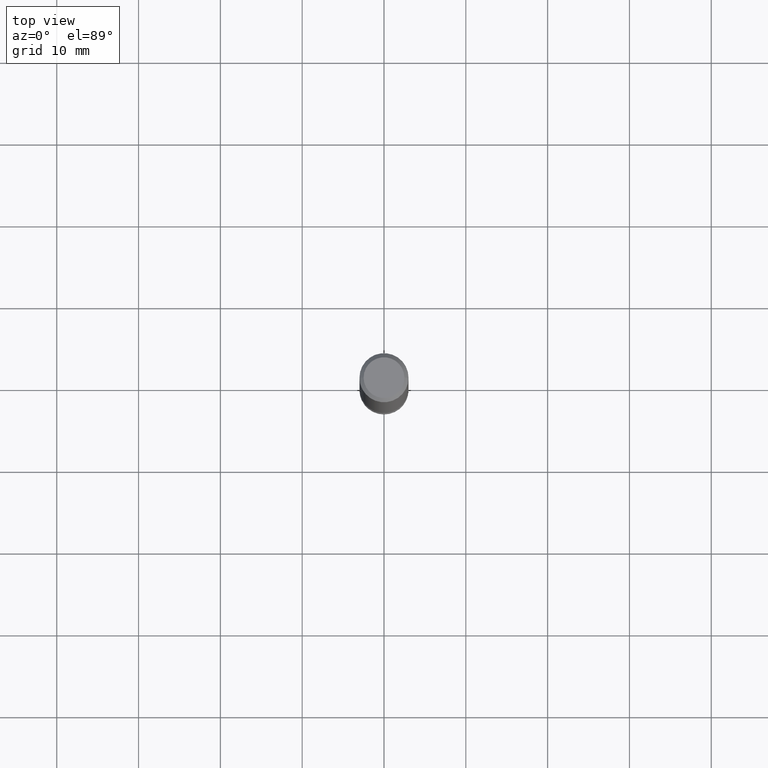
[diagram: clean part render]
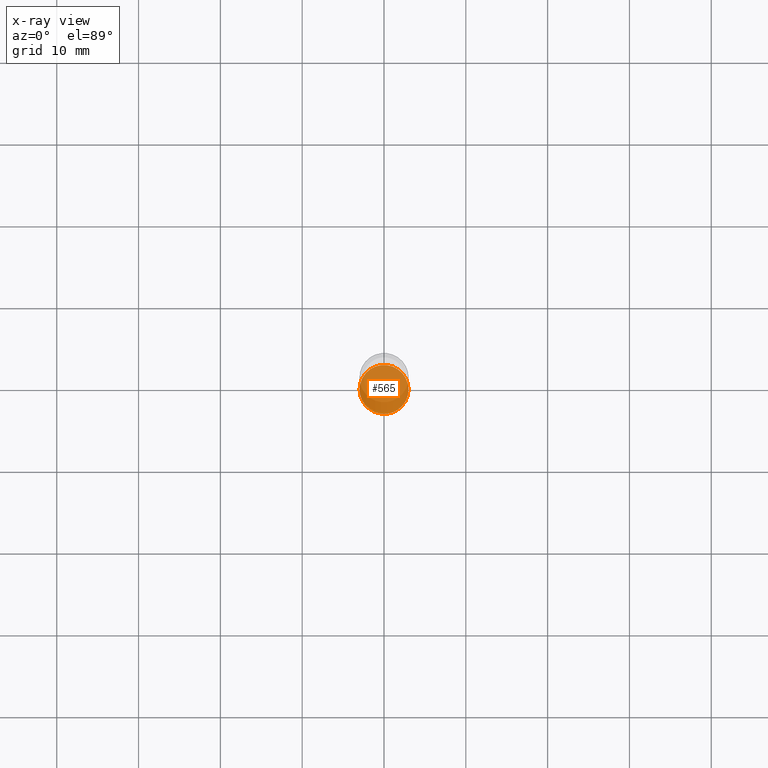
[diagram: x-ray — body ghosted, one internal face saturated and labeled with its STEP entity id]
A machine part, top view, then the same camera in x-ray: the body is ghosted and one INTERNAL B-rep face — a face not visible from any outside direction — is saturated and labeled: STEP entity #565.
In plain terms, the highlighted planar face has unit normal (0, -0, -1).
Its self-contained STEP definition (entity closure, byte-faithful):
#9 = DIRECTION ( 'NONE',  ( -1.000000000000000000, 6.982962677686265922E-15, -4.876176775795935793E-29 ) ) ;
#30 = VERTEX_POINT ( 'NONE', #146 ) ;
#35 = CIRCLE ( 'NONE', #535, 0.1175999999999994133 ) ;
#48 = VERTEX_POINT ( 'NONE', #550 ) ;
#63 = EDGE_CURVE ( 'NONE', #30, #48, #488, .T. ) ;
#69 = PLANE ( 'NONE',  #555 ) ;
#76 = DIRECTION ( 'NONE',  ( -1.000000000000000000, 6.982962677686261977E-15, 0.000000000000000000 ) ) ;
#77 = DIRECTION ( 'NONE',  ( 2.438088387897960049E-29, -3.491481338843145188E-15, -1.000000000000000000 ) ) ;
#96 = EDGE_CURVE ( 'NONE', #48, #30, #35, .T. ) ;
#123 = DIRECTION ( 'NONE',  ( 2.445468806185136597E-29, -3.491481338843145583E-15, -1.000000000000000000 ) ) ;
#144 = ORIENTED_EDGE ( 'NONE', *, *, #63, .T. ) ;
#146 = CARTESIAN_POINT ( 'NONE',  ( -0.1175999999999994133, -1.057165829653353752E-14, -3.267699999999999605 ) ) ;
#176 = ORIENTED_EDGE ( 'NONE', *, *, #96, .T. ) ;
#182 = EDGE_LOOP ( 'NONE', ( #176, #144 ) ) ;
#303 = DIRECTION ( 'NONE',  ( 2.445468806185136597E-29, -3.491481338843145583E-15, -1.000000000000000000 ) ) ;
#342 = DIRECTION ( 'NONE',  ( -1.000000000000000000, 6.982962677686261977E-15, 0.000000000000000000 ) ) ;
#391 = CARTESIAN_POINT ( 'NONE',  ( 8.211964108959807889E-16, 0.1175999999999880058, -3.267700000000000049 ) ) ;
#392 = CARTESIAN_POINT ( 'NONE',  ( 7.991058417971169471E-29, -1.140911357093774486E-14, -3.267699999999999605 ) ) ;
#488 = CIRCLE ( 'NONE', #554, 0.1175999999999994133 ) ;
#517 = FACE_OUTER_BOUND ( 'NONE', #182, .T. ) ;
#535 = AXIS2_PLACEMENT_3D ( 'NONE', #563, #303, #76 ) ;
#550 = CARTESIAN_POINT ( 'NONE',  ( 0.1175999999999994133, -1.223092183392297375E-14, -3.267699999999999605 ) ) ;
#554 = AXIS2_PLACEMENT_3D ( 'NONE', #392, #123, #342 ) ;
#555 = AXIS2_PLACEMENT_3D ( 'NONE', #391, #77, #9 ) ;
#563 = CARTESIAN_POINT ( 'NONE',  ( 7.991058417971169471E-29, -1.140911357093774486E-14, -3.267699999999999605 ) ) ;
#565 = ADVANCED_FACE ( 'NONE', ( #517 ), #69, .T. ) ;